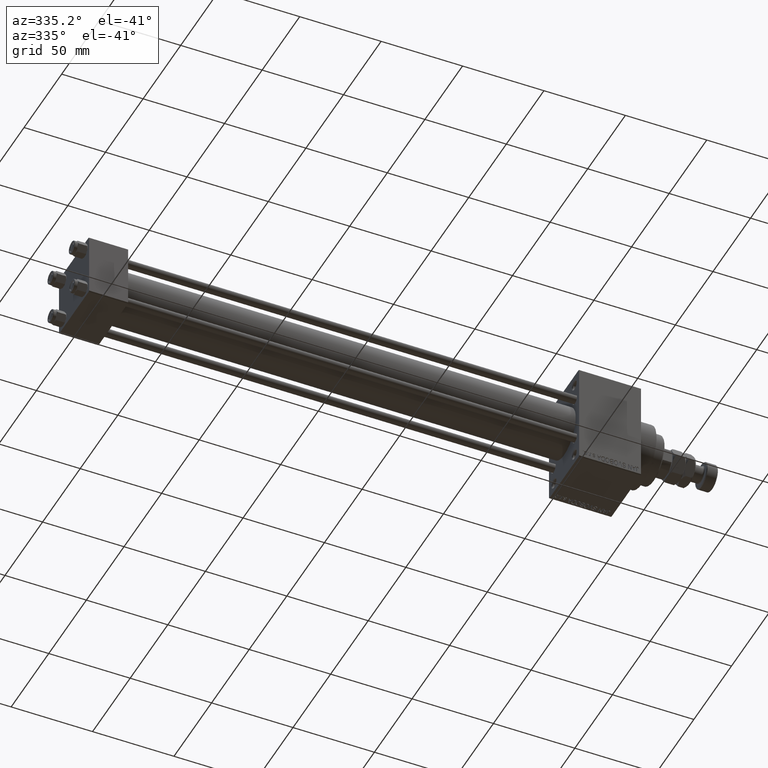
[diagram: clean part render]
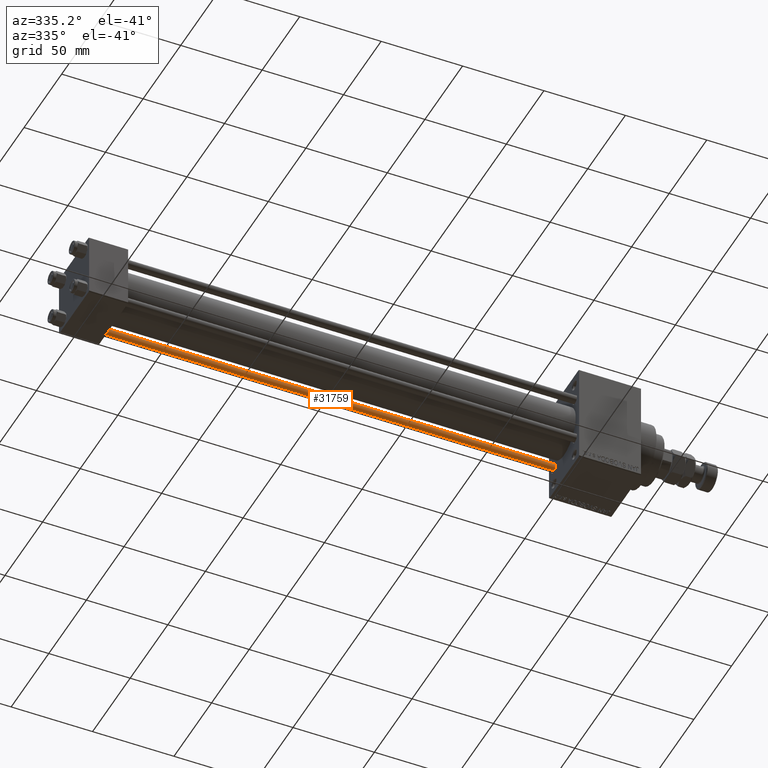
[diagram: same view with one face highlighted and labeled with its STEP entity id]
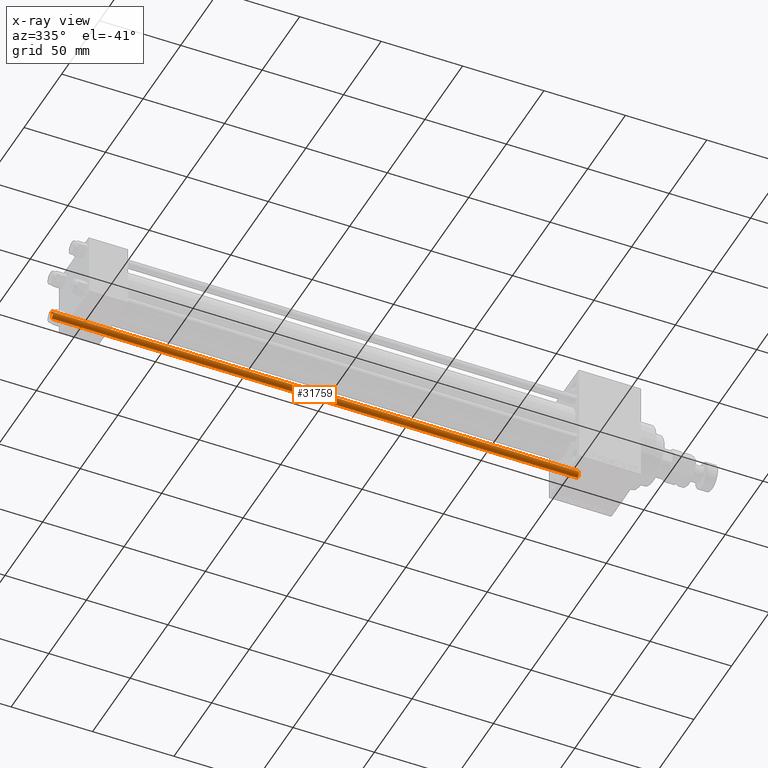
[diagram: x-ray of the same camera — body ghosted, the highlighted face saturated]
A machine part, auxiliary view. The second image highlights one B-rep face of the part: STEP entity #31759.
The next image is the same camera in x-ray: the body ghosted, the highlighted face saturated — about 0% of this face is hidden behind the body in this view.
In plain terms, the highlighted cylindrical surface (edge-blend (fillet) strip) has radius 2.5 mm, axis along (1, -0, 0).
Its self-contained STEP definition (entity closure, byte-faithful):
#972 = AXIS2_PLACEMENT_3D ( 'NONE', #26989, #27238, #19562 ) ;
#1925 = ORIENTED_EDGE ( 'NONE', *, *, #35338, .T. ) ;
#3855 = VECTOR ( 'NONE', #16017, 1000.000000000000000 ) ;
#4366 = DIRECTION ( 'NONE',  ( -0.000000000000000000, -0.000000000000000000, -1.000000000000000000 ) ) ;
#6830 = VECTOR ( 'NONE', #40508, 1000.000000000000000 ) ;
#8223 = CARTESIAN_POINT ( 'NONE',  ( 0.000000000000000000, 0.000000000000000000, 324.0000000000000000 ) ) ;
#8942 = VERTEX_POINT ( 'NONE', #33840 ) ;
#9546 = VERTEX_POINT ( 'NONE', #26733 ) ;
#11420 = CARTESIAN_POINT ( 'NONE',  ( -2.500000000000000000, 0.000000000000000000, 324.0000000000000000 ) ) ;
#11830 = CYLINDRICAL_SURFACE ( 'NONE', #15927, 2.500000000000000000 ) ;
#12324 = LINE ( 'NONE', #28721, #6830 ) ;
#13615 = CIRCLE ( 'NONE', #39029, 2.500000000000000000 ) ;
#14017 = CARTESIAN_POINT ( 'NONE',  ( -2.500000000000000000, 0.000000000000000000, 0.4999999999998894218 ) ) ;
#15276 = LINE ( 'NONE', #11420, #3855 ) ;
#15632 = EDGE_LOOP ( 'NONE', ( #39394, #1925, #46725, #45176 ) ) ;
#15927 = AXIS2_PLACEMENT_3D ( 'NONE', #8223, #4366, #16186 ) ;
#16017 = DIRECTION ( 'NONE',  ( -0.000000000000000000, -0.000000000000000000, -1.000000000000000000 ) ) ;
#16186 = DIRECTION ( 'NONE',  ( -1.000000000000000000, 0.000000000000000000, 0.000000000000000000 ) ) ;
#16937 = FACE_OUTER_BOUND ( 'NONE', #15632, .T. ) ;
#17104 = EDGE_CURVE ( 'NONE', #8942, #40151, #15276, .T. ) ;
#19562 = DIRECTION ( 'NONE',  ( 1.000000000000000000, 0.000000000000000000, 0.000000000000000000 ) ) ;
#21132 = DIRECTION ( 'NONE',  ( 1.000000000000000000, 0.000000000000000000, 0.000000000000000000 ) ) ;
#21465 = CIRCLE ( 'NONE', #972, 2.500000000000000000 ) ;
#25194 = VERTEX_POINT ( 'NONE', #42238 ) ;
#25907 = EDGE_CURVE ( 'NONE', #40151, #25194, #21465, .T. ) ;
#26733 = CARTESIAN_POINT ( 'NONE',  ( 2.500000000000000000, 3.061616997868383141E-16, 323.5000000000000568 ) ) ;
#26989 = CARTESIAN_POINT ( 'NONE',  ( 0.000000000000000000, 0.000000000000000000, 0.4999999999998894218 ) ) ;
#27238 = DIRECTION ( 'NONE',  ( -0.000000000000000000, -0.000000000000000000, 1.000000000000000000 ) ) ;
#28721 = CARTESIAN_POINT ( 'NONE',  ( 2.500000000000000000, 3.061616997868383141E-16, 324.0000000000000000 ) ) ;
#29830 = EDGE_CURVE ( 'NONE', #9546, #25194, #12324, .T. ) ;
#31759 = ADVANCED_FACE ( 'NONE', ( #16937 ), #11830, .T. ) ;
#32171 = CARTESIAN_POINT ( 'NONE',  ( 0.000000000000000000, 0.000000000000000000, 323.5000000000000568 ) ) ;
#33840 = CARTESIAN_POINT ( 'NONE',  ( -2.500000000000000000, 0.000000000000000000, 323.5000000000000568 ) ) ;
#35338 = EDGE_CURVE ( 'NONE', #9546, #8942, #13615, .T. ) ;
#39029 = AXIS2_PLACEMENT_3D ( 'NONE', #32171, #48073, #21132 ) ;
#39394 = ORIENTED_EDGE ( 'NONE', *, *, #29830, .F. ) ;
#40151 = VERTEX_POINT ( 'NONE', #14017 ) ;
#40508 = DIRECTION ( 'NONE',  ( -0.000000000000000000, -0.000000000000000000, -1.000000000000000000 ) ) ;
#42238 = CARTESIAN_POINT ( 'NONE',  ( 2.500000000000000000, 3.061616997868383141E-16, 0.4999999999998894218 ) ) ;
#45176 = ORIENTED_EDGE ( 'NONE', *, *, #25907, .T. ) ;
#46725 = ORIENTED_EDGE ( 'NONE', *, *, #17104, .T. ) ;
#48073 = DIRECTION ( 'NONE',  ( 0.000000000000000000, 0.000000000000000000, -1.000000000000000000 ) ) ;